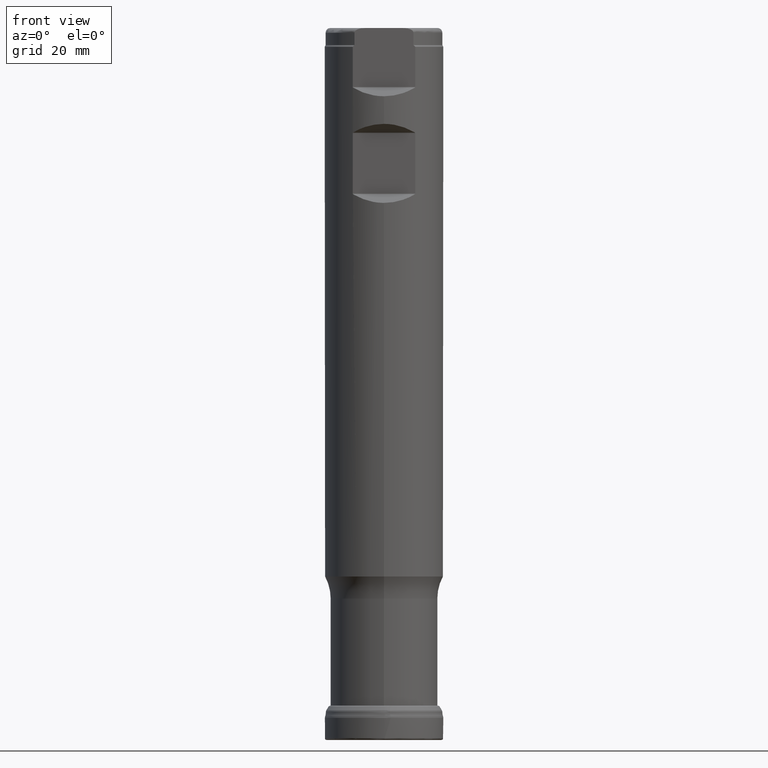
[diagram: clean part render]
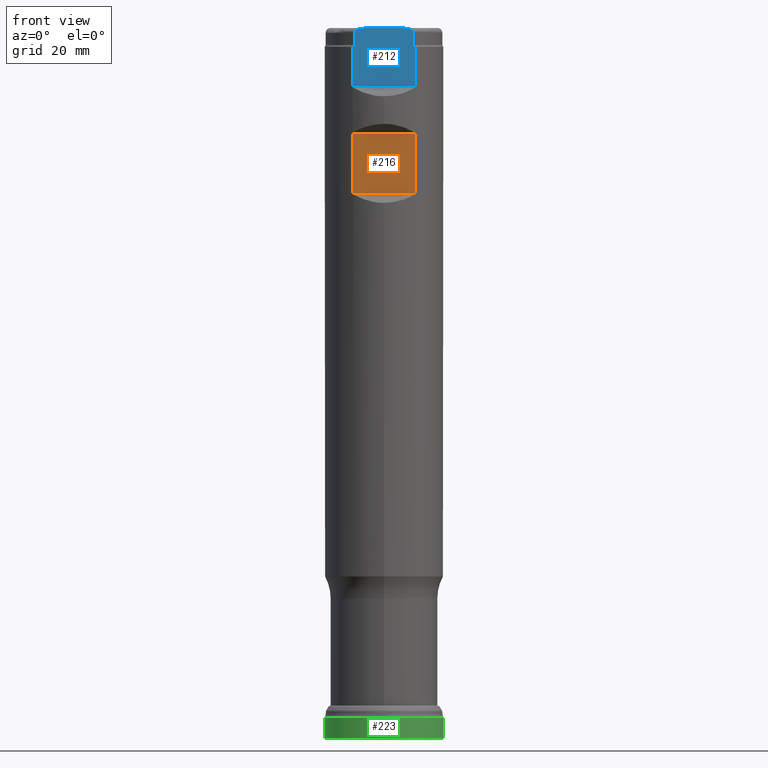
[diagram: same view with three faces highlighted in distinct colors, each labeled with its STEP entity id]
A machine part, front view with three faces highlighted in distinct colors.
Their STEP definitions:

[orange] entity #216 — the highlighted planar face has unit normal (0, 1, -0).
#168=FACE_OUTER_BOUND('',#412,.T.);
#216=ADVANCED_FACE('',(#168),#247,.F.);
#247=PLANE('',#861);
#252=LINE('',#1383,#271);
#253=LINE('',#1415,#272);
#259=LINE('',#1485,#278);
#260=LINE('',#1486,#279);
#271=VECTOR('',#933,1.);
#272=VECTOR('',#936,1.);
#278=VECTOR('',#998,1.);
#279=VECTOR('',#999,1.);
#412=EDGE_LOOP('',(#538,#539,#540,#541));
#538=ORIENTED_EDGE('',*,*,#680,.T.);
#539=ORIENTED_EDGE('',*,*,#698,.T.);
#540=ORIENTED_EDGE('',*,*,#676,.T.);
#541=ORIENTED_EDGE('',*,*,#699,.T.);
#614=VERTEX_POINT('',#1366);
#616=VERTEX_POINT('',#1382);
#617=VERTEX_POINT('',#1384);
#620=VERTEX_POINT('',#1414);
#676=EDGE_CURVE('',#617,#616,#252,.T.);
#680=EDGE_CURVE('',#614,#620,#253,.T.);
#698=EDGE_CURVE('',#620,#617,#259,.T.);
#699=EDGE_CURVE('',#616,#614,#260,.T.);
#861=AXIS2_PLACEMENT_3D('',#1487,#1000,#1001);
#933=DIRECTION('',(0.,1.17145536458252E-15,1.));
#936=DIRECTION('',(0.,-1.17145536458252E-15,-1.));
#998=DIRECTION('',(1.,-1.37230767120917E-30,-1.17145536458252E-15));
#999=DIRECTION('',(-1.,1.37230767120917E-30,1.17145536458252E-15));
#1000=DIRECTION('',(0.,1.,-1.17145536458252E-15));
#1001=DIRECTION('',(-1.17267306976032E-15,-1.17093834628434E-15,-1.));
#1366=CARTESIAN_POINT('',(-6.69014013306148,-10.7949999999999,129.857060931288));
#1382=CARTESIAN_POINT('',(6.69014013306148,-10.7949999999999,129.857060931288));
#1383=CARTESIAN_POINT('',(6.69014013306148,-10.795,1.26458606606684E-14));
#1384=CARTESIAN_POINT('',(6.69014013306148,-10.7949999999999,116.999189068712));
#1414=CARTESIAN_POINT('',(-6.69014013306148,-10.7949999999999,116.999189068712));
#1415=CARTESIAN_POINT('',(-6.69014013306148,-10.795,1.26458606606684E-14));
#1485=CARTESIAN_POINT('',(19.,-10.7949999999999,116.999189068712));
#1486=CARTESIAN_POINT('',(19.,-10.7949999999999,129.857060931288));
#1487=CARTESIAN_POINT('',(19.,-10.7949999999999,129.981325));

[blue] entity #212 — the highlighted planar face has unit normal (0, 1, -0).
#164=FACE_OUTER_BOUND('',#408,.T.);
#212=ADVANCED_FACE('',(#164),#244,.F.);
#244=PLANE('',#857);
#249=LINE('',#1289,#268);
#250=LINE('',#1316,#269);
#251=LINE('',#1321,#270);
#254=LINE('',#1431,#273);
#255=LINE('',#1435,#274);
#256=LINE('',#1478,#275);
#268=VECTOR('',#892,1.);
#269=VECTOR('',#925,1.);
#270=VECTOR('',#928,1.);
#273=VECTOR('',#945,1.);
#274=VECTOR('',#948,1.);
#275=VECTOR('',#987,1.);
#408=EDGE_LOOP('',(#520,#521,#522,#523,#524,#525,#526,#527,#528,#529));
#520=ORIENTED_EDGE('',*,*,#667,.T.);
#521=ORIENTED_EDGE('',*,*,#695,.T.);
#522=ORIENTED_EDGE('',*,*,#669,.T.);
#523=ORIENTED_EDGE('',*,*,#682,.T.);
#524=ORIENTED_EDGE('',*,*,#687,.T.);
#525=ORIENTED_EDGE('',*,*,#689,.T.);
#526=ORIENTED_EDGE('',*,*,#656,.F.);
#527=ORIENTED_EDGE('',*,*,#688,.T.);
#528=ORIENTED_EDGE('',*,*,#685,.T.);
#529=ORIENTED_EDGE('',*,*,#683,.T.);
#595=VERTEX_POINT('',#1287);
#596=VERTEX_POINT('',#1288);
#607=VERTEX_POINT('',#1317);
#608=VERTEX_POINT('',#1318);
#609=VERTEX_POINT('',#1320);
#610=VERTEX_POINT('',#1322);
#622=VERTEX_POINT('',#1423);
#623=VERTEX_POINT('',#1428);
#624=VERTEX_POINT('',#1432);
#625=VERTEX_POINT('',#1434);
#656=EDGE_CURVE('',#596,#595,#249,.T.);
#667=EDGE_CURVE('',#607,#608,#250,.T.);
#669=EDGE_CURVE('',#610,#609,#251,.T.);
#682=EDGE_CURVE('',#609,#622,#791,.T.);
#683=EDGE_CURVE('',#623,#607,#792,.T.);
#685=EDGE_CURVE('',#624,#623,#254,.T.);
#687=EDGE_CURVE('',#622,#625,#255,.T.);
#688=EDGE_CURVE('',#596,#624,#793,.T.);
#689=EDGE_CURVE('',#625,#595,#794,.T.);
#695=EDGE_CURVE('',#608,#610,#256,.T.);
#791=B_SPLINE_CURVE_WITH_KNOTS('',3,(#1419,#1420,#1421,#1422),
 .UNSPECIFIED.,.F.,.F.,(4,4),(0.,1.),.UNSPECIFIED.);
#792=B_SPLINE_CURVE_WITH_KNOTS('',3,(#1424,#1425,#1426,#1427),
 .UNSPECIFIED.,.F.,.F.,(4,4),(0.,1.),.UNSPECIFIED.);
#793=B_SPLINE_CURVE_WITH_KNOTS('',3,(#1437,#1438,#1439,#1440,#1441,#1442,
#1443,#1444),.UNSPECIFIED.,.F.,.F.,(4,2,2,4),(0.,0.500000000000004,0.750000000000002,
1.),.UNSPECIFIED.);
#794=B_SPLINE_CURVE_WITH_KNOTS('',3,(#1445,#1446,#1447,#1448,#1449,#1450,
#1451,#1452),.UNSPECIFIED.,.F.,.F.,(4,2,2,4),(0.,0.250000000000002,0.500000000000004,
1.),.UNSPECIFIED.);
#857=AXIS2_PLACEMENT_3D('',#1479,#988,#989);
#892=DIRECTION('',(1.,-1.37230767120917E-30,-1.17145536458252E-15));
#925=DIRECTION('',(0.,-1.17145536458252E-15,-1.));
#928=DIRECTION('',(0.,1.17145536458252E-15,1.));
#945=DIRECTION('',(0.,-1.17145536458252E-15,-1.));
#948=DIRECTION('',(0.,1.17145536458252E-15,1.));
#987=DIRECTION('',(1.,-1.37230767120917E-30,-1.17145536458252E-15));
#988=DIRECTION('',(0.,1.,-1.17145536458252E-15));
#989=DIRECTION('',(-1.17267306976032E-15,-1.17093834628434E-15,-1.));
#1287=CARTESIAN_POINT('',(3.9645901427655,-10.7949999999998,152.4));
#1288=CARTESIAN_POINT('',(-3.96459014274939,-10.7949999999998,152.4));
#1289=CARTESIAN_POINT('',(19.,-10.7949999999998,152.4));
#1316=CARTESIAN_POINT('',(-6.69014013306148,-10.795,1.26458606606684E-14));
#1317=CARTESIAN_POINT('',(-6.69014013306148,-10.7949999999998,148.4));
#1318=CARTESIAN_POINT('',(-6.69014013306148,-10.7949999999998,139.824264068712));
#1320=CARTESIAN_POINT('',(6.69014013306149,-10.7949999999998,148.4));
#1321=CARTESIAN_POINT('',(6.69014013306148,-10.795,1.26458606606684E-14));
#1322=CARTESIAN_POINT('',(6.69014013306148,-10.7949999999998,139.824264068712));
#1419=CARTESIAN_POINT('',(6.69014013306149,-10.7949999999998,148.4));
#1420=CARTESIAN_POINT('',(6.56213395392068,-10.7949999999998,148.516794678519));
#1421=CARTESIAN_POINT('',(6.43287534987463,-10.7949999999998,148.632313780549));
#1422=CARTESIAN_POINT('',(6.30221984700628,-10.7949999999998,148.746410161514));
#1423=CARTESIAN_POINT('',(6.30221984700628,-10.7949999999998,148.746410161514));
#1424=CARTESIAN_POINT('',(-6.30221984700628,-10.7949999999998,148.746410161514));
#1425=CARTESIAN_POINT('',(-6.43289266558068,-10.7949999999998,148.632298659414));
#1426=CARTESIAN_POINT('',(-6.56215030852007,-10.7949999999998,148.516779756347));
#1427=CARTESIAN_POINT('',(-6.69014013306149,-10.7949999999998,148.4));
#1428=CARTESIAN_POINT('',(-6.30221984700628,-10.7949999999998,148.746410161514));
#1431=CARTESIAN_POINT('',(-6.30221984700628,-10.795,1.26458606606684E-14));
#1432=CARTESIAN_POINT('',(-6.30221984700629,-10.7949999999998,151.4));
#1434=CARTESIAN_POINT('',(6.30221984700628,-10.7949999999998,151.4));
#1435=CARTESIAN_POINT('',(6.30221984700628,-10.795,1.26458606606684E-14));
#1437=CARTESIAN_POINT('',(-3.96459014274939,-10.7949999999998,152.4));
#1438=CARTESIAN_POINT('',(-4.42074173003042,-10.7949999999998,152.4));
#1439=CARTESIAN_POINT('',(-4.87318840292044,-10.7949999999998,152.369142099305));
#1440=CARTESIAN_POINT('',(-5.53533403752101,-10.7949999999998,152.185225208593));
#1441=CARTESIAN_POINT('',(-5.75555843413989,-10.7949999999998,152.099874834573));
#1442=CARTESIAN_POINT('',(-6.13560345866923,-10.7949999999998,151.833188896451));
#1443=CARTESIAN_POINT('',(-6.30221984700633,-10.7949999999998,151.63301520881));
#1444=CARTESIAN_POINT('',(-6.30221984700631,-10.7949999999998,151.4));
#1445=CARTESIAN_POINT('',(6.3022198470063,-10.7949999999998,151.4));
#1446=CARTESIAN_POINT('',(6.30221984700631,-10.7949999999998,151.632144066048));
#1447=CARTESIAN_POINT('',(6.13620306695797,-10.7949999999998,151.832165283004));
#1448=CARTESIAN_POINT('',(5.75958150283745,-10.7949999999998,152.097647270539));
#1449=CARTESIAN_POINT('',(5.54206939075326,-10.7949999999998,152.182743883684));
#1450=CARTESIAN_POINT('',(4.88212460634036,-10.7949999999998,152.367850502025));
#1451=CARTESIAN_POINT('',(4.41959321494598,-10.7949999999998,152.399999999999));
#1452=CARTESIAN_POINT('',(3.9645901427655,-10.7949999999998,152.4));
#1478=CARTESIAN_POINT('',(19.,-10.7949999999998,139.824264068712));
#1479=CARTESIAN_POINT('',(19.,-10.7949999999998,152.4));

[green] entity #223 — the highlighted face is a SurfaceOfRevolution surface.
#111=SURFACE_OF_REVOLUTION('',#797,#132);
#132=AXIS1_PLACEMENT('',#1536,#1023);
#223=ADVANCED_FACE('',(#332,#333),#111,.F.);
#332=FACE_BOUND('',#422,.T.);
#333=FACE_BOUND('',#423,.T.);
#422=EDGE_LOOP('',(#558));
#423=EDGE_LOOP('',(#559));
#558=ORIENTED_EDGE('',*,*,#704,.T.);
#559=ORIENTED_EDGE('',*,*,#705,.F.);
#636=VERTEX_POINT('',#1509);
#637=VERTEX_POINT('',#1523);
#704=EDGE_CURVE('',#636,#636,#746,.T.);
#705=EDGE_CURVE('',#637,#637,#747,.T.);
#746=CIRCLE('',#868,12.6999999641177);
#747=CIRCLE('',#869,12.6999998206456);
#797=B_SPLINE_CURVE_WITH_KNOTS('',3,(#1524,#1525,#1526,#1527,#1528,#1529,
#1530,#1531,#1532,#1533,#1534,#1535),.UNSPECIFIED.,.F.,.F.,(4,1,1,1,1,1,
1,1,1,4),(0.,0.221418157861957,0.365983083750147,0.510548009638337,0.655112935526528,
0.799677861414718,0.871960324358813,0.90810155583086,0.944242787302908,
1.),.UNSPECIFIED.);
#868=AXIS2_PLACEMENT_3D('',#1508,#1018,#1019);
#869=AXIS2_PLACEMENT_3D('',#1522,#1021,#1022);
#1018=DIRECTION('',(0.,1.17145536458252E-15,1.));
#1019=DIRECTION('',(0.,-1.,1.169572425592E-15));
#1021=DIRECTION('',(0.,1.17145536458252E-15,1.));
#1022=DIRECTION('',(0.,-1.,1.16103541370391E-15));
#1023=DIRECTION('',(0.,1.17145536458252E-15,1.));
#1508=CARTESIAN_POINT('',(0.,4.60709331897368E-16,0.393279458890483));
#1509=CARTESIAN_POINT('',(0.,-12.6999999641177,0.393279458890498));
#1522=CARTESIAN_POINT('',(0.,5.51629905089093E-15,4.70892807158453));
#1523=CARTESIAN_POINT('',(0.,-12.6999998206456,4.70892807158454));
#1524=CARTESIAN_POINT('',(12.6851114338255,-0.614774683464543,4.7089278149985));
#1525=CARTESIAN_POINT('',(12.6893022130307,-0.700052781619789,4.3906679803112));
#1526=CARTESIAN_POINT('',(12.6924482482272,-0.841021560379687,3.86456694619526));
#1527=CARTESIAN_POINT('',(12.6844232341855,-1.03765551372576,3.13071376657447));
#1528=CARTESIAN_POINT('',(12.6688639016886,-1.20465003445696,2.50747195226286));
#1529=CARTESIAN_POINT('',(12.6456743610281,-1.37158547527239,1.88444600390969));
#1530=CARTESIAN_POINT('',(12.6228636633574,-1.51058083390428,1.36536629456014));
#1531=CARTESIAN_POINT('',(12.605725075243,-1.60812748473489,1.0021262866223));
#1532=CARTESIAN_POINT('',(12.5956364747836,-1.66337306516829,0.794465395048889));
#1533=CARTESIAN_POINT('',(12.5861866716016,-1.71394688967965,0.610805312536115));
#1534=CARTESIAN_POINT('',(12.5819625461257,-1.73390185774127,0.475524640853963));
#1535=CARTESIAN_POINT('',(12.57952963207,-1.74511699449154,0.393279458890485));
#1536=CARTESIAN_POINT('',(0.,0.,0.));